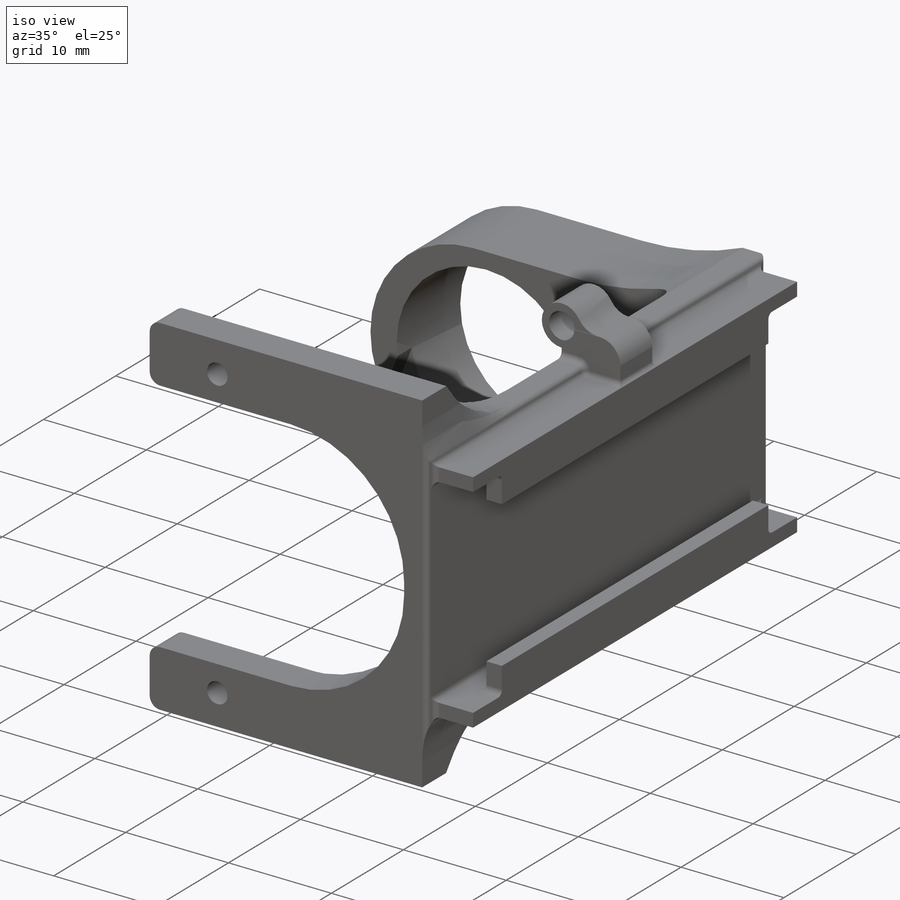
[diagram: iso view]
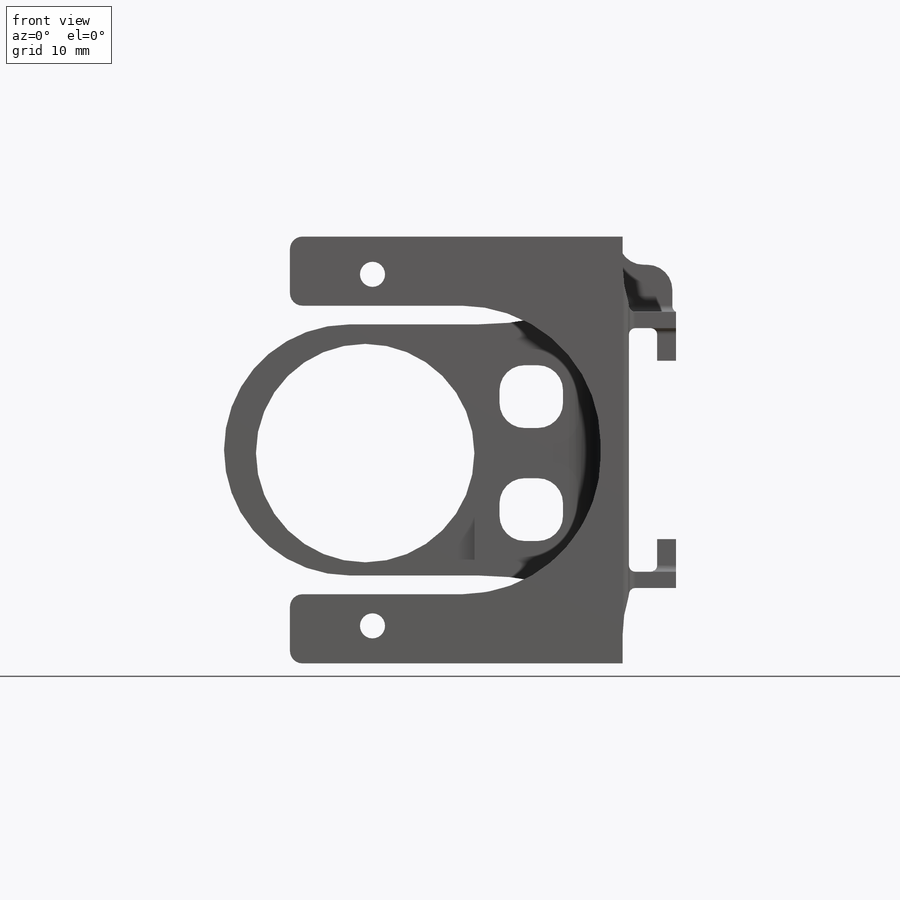
[diagram: front view]
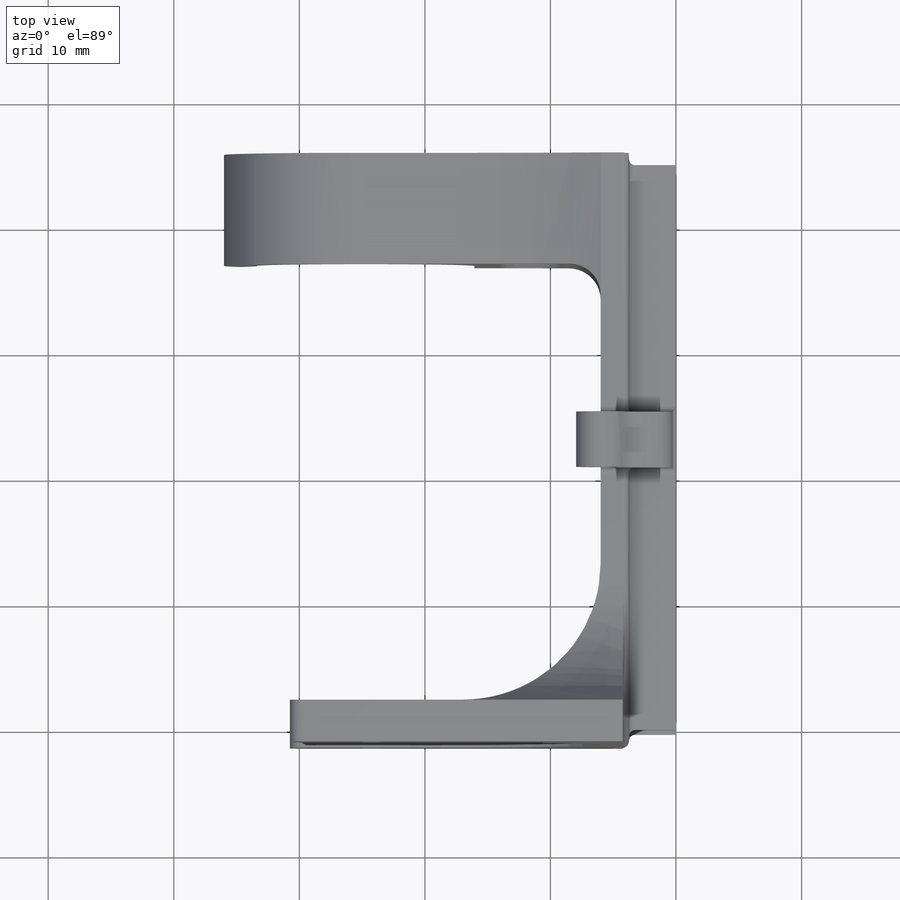
[diagram: top view]
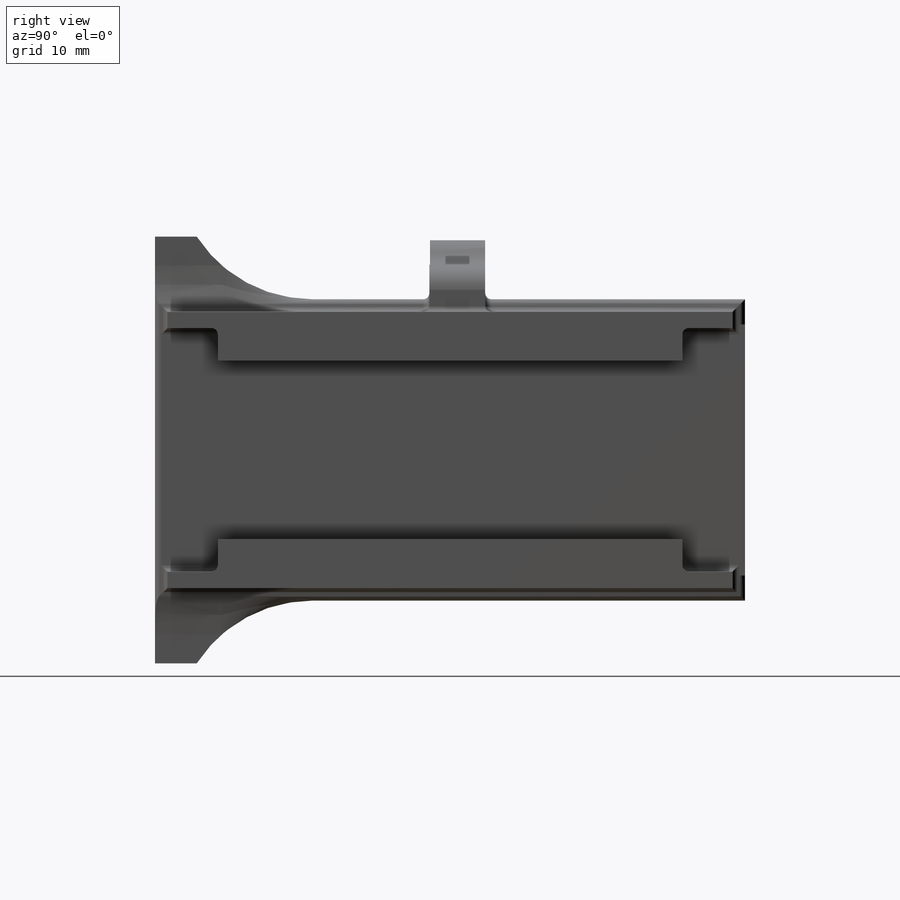
[diagram: right view]
SOLIDWORKS PART (.sldprt)
format: sldprt  version: not decoded by parser v0  size: 627,200 bytes
history: native  units: mm
features: fillet x13, sketch x12, extrude x7, cut_extrude x5, material x1 (+12 scaffold rows collapsed)
feature tree (50):
  scaffold x12  (default folders/planes/origin — collapsed)
  material  "Material <not specified>"
  sketch  "Sketch1"  dims[D1=22.0mm D2=45.0mm D3=18.5mm D4=18.5mm D5=3.9mm D6=3.9mm D7=1.3mm D8=1.3mm]
  extrude  "Boss-Extrude1"  Depth=1.5mm
  sketch  "Sketch2"
  extrude  "Boss-Extrude2"  Depth=2.25mm
  sketch  "Sketch3"  dims[D1=1.0mm]
  extrude  "Boss-Extrude3"  Depth=2.25mm
  fillet  "Fillet1"  Radius=0.5mm
  fillet  "Fillet2"  Radius=0.5mm
  sketch  "Sketch4"  dims[D1=10.0mm D2=10.0mm]
  extrude  "Boss-Extrude4"  Depth=32.25mm
  fillet  "Fillet3"  Radius=10mm
  sketch  "Sketch5"  dims[D1=8.5mm]
  cut_extrude  "Cut-Extrude1"  Depth=12.25mm
  fillet  "Fillet4"  Radius=25mm
  fillet  "Fillet5"  Radius=2.5mm
  sketch  "Sketch6"
  cut_extrude  "Cut-Extrude2"  Depth=2mm
  sketch  "Sketch7"  dims[c1.D1=15.0mm c1.D2=5.0mm c2.D1=17.0mm c2.D2=17.0mm]
  extrude  "Boss-Extrude5"  Depth=24.75mm
  fillet  "Fillet7"  Radius=11mm
  fillet  "Fillet8"  Radius=11mm
  fillet  "Fillet9"  Radius=11mm
  fillet  "Fillet10"  Radius=10mm
  sketch  "Sketch10"  dims[D1=2.0mm D2=2.0mm D3=5.0mm D4=5.0mm D5=2.0mm]
  cut_extrude  "Cut-Extrude3"  Depth=14.75mm
  fillet  "Fillet11"  Radius=2mm
  sketch  "Sketch11"  dims[D1=1.4mm]
  cut_extrude  "Cut-Extrude4"  Depth=7.75mm
  sketch  "Sketch12"
  extrude  "Boss-Extrude6"  Depth=3.75mm
  fillet  "Fillet12"  Radius=0.5mm
  sketch  "Sketch13"
  extrude  "Boss-Extrude7"  Depth=4.4mm
  sketch  "Sketch15"  dims[D1=~1.359186mm]
  cut_extrude  "Cut-Extrude5"  Depth=10.4mm
  fillet  "Fillet13"  Radius=2mm
  fillet  "Fillet14"  Radius=1mm
decode coverage: 33 of 37 modeling features carry decoded parameters
note: ~ marks probable driven/reference dimensions
note: suppression state not decoded; provenance and decode notes live in map.json
